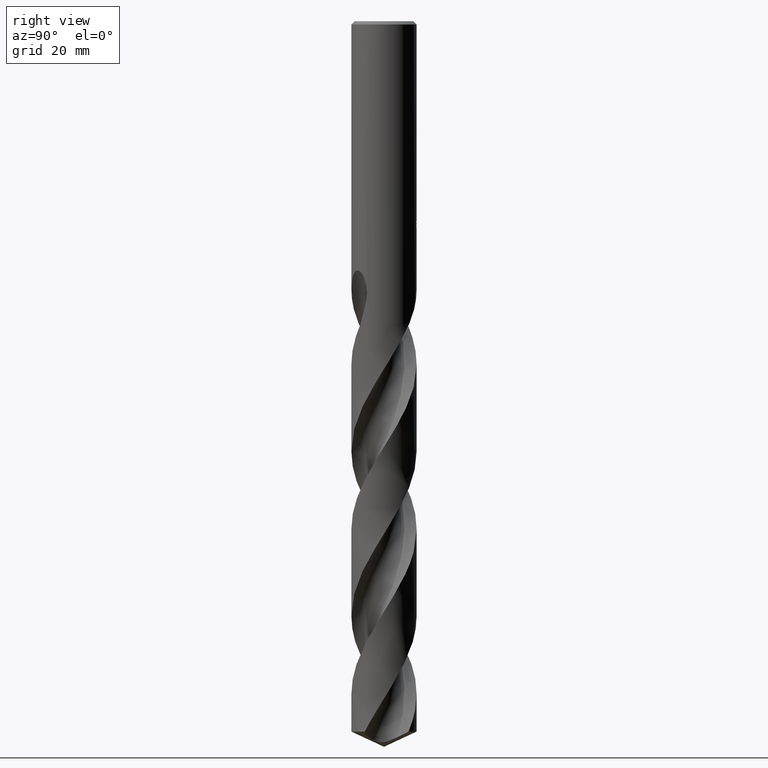
[diagram: clean part render]
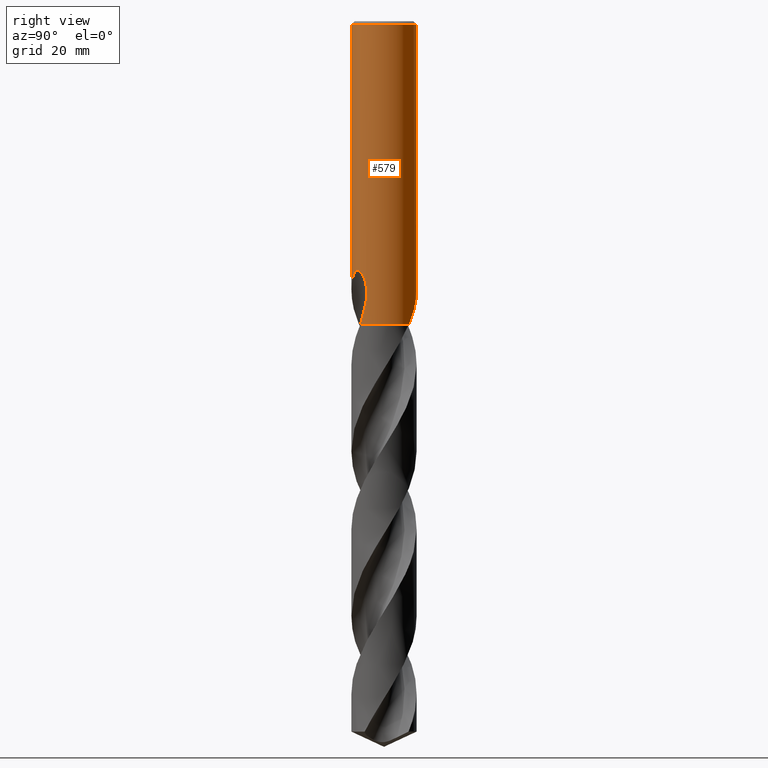
[diagram: same view with one face highlighted and labeled with its STEP entity id]
A machine part, right view. The second image highlights one B-rep face of the part: STEP entity #579.
In plain terms, the highlighted cylindrical surface (edge-blend (fillet) strip) has radius 8 mm, axis along (-0, -0, 1).
Its self-contained STEP definition (entity closure, byte-faithful):
#291=EDGE_CURVE('',#327,#565,#772,.T.);
#297=VERTEX_POINT('',#779);
#313=VERTEX_POINT('',#795);
#315=VERTEX_POINT('',#797);
#327=VERTEX_POINT('',#809);
#363=EDGE_CURVE('',#593,#403,#849,.T.);
#365=EDGE_CURVE('',#583,#565,#851,.T.);
#373=VERTEX_POINT('',#859);
#401=EDGE_CURVE('',#297,#509,#889,.T.);
#403=VERTEX_POINT('',#891);
#427=EDGE_CURVE('',#497,#315,#918,.T.);
#435=EDGE_CURVE('',#479,#705,#927,.T.);
#479=VERTEX_POINT('',#976);
#497=VERTEX_POINT('',#999);
#503=EDGE_CURVE('',#539,#373,#1005,.T.);
#505=EDGE_CURVE('',#373,#701,#1007,.T.);
#509=VERTEX_POINT('',#1011);
#511=EDGE_CURVE('',#593,#327,#1013,.T.);
#539=VERTEX_POINT('',#1043);
#565=VERTEX_POINT('',#1071);
#569=EDGE_CURVE('',#297,#403,#1075,.T.);
#577=EDGE_CURVE('',#705,#313,#1083,.T.);
#579=ADVANCED_FACE('',(#1085),#1086,.T.);
#581=EDGE_CURVE('',#701,#509,#1088,.T.);
#583=VERTEX_POINT('',#1090);
#593=VERTEX_POINT('',#1102);
#597=EDGE_CURVE('',#313,#539,#1106,.T.);
#691=EDGE_CURVE('',#497,#479,#1205,.T.);
#695=EDGE_CURVE('',#583,#315,#1209,.T.);
#701=VERTEX_POINT('',#1215);
#705=VERTEX_POINT('',#1219);
#772=B_SPLINE_CURVE_WITH_KNOTS('',3,(#2755,#2756,#2757,#2758),.UNSPECIFIED.,.F.,.F.,(4,4),(0.0,4.59249789605055),.UNSPECIFIED.);
#779=CARTESIAN_POINT('',(0.0,8.0,-0.799999999999997));
#795=CARTESIAN_POINT('',(0.873560781758956,7.95216269706378,-50.7587351791531));
#797=CARTESIAN_POINT('',(-2.43676324777897E-012,8.0,-65.8011934870331));
#809=CARTESIAN_POINT('',(6.50913730642338,-4.65092802848285,-69.9243581719634));
#849=LINE('',#3167,#3168);
#851=CIRCLE('',#3171,8.0);
#859=CARTESIAN_POINT('',(1.33721006514658,7.88745011024924,-48.5150484364821));
#889=LINE('',#3446,#3447);
#891=CARTESIAN_POINT('',(9.79685083057902E-016,-8.0,-0.799999999999997));
#918=LINE('',#3630,#3631);
#927=ELLIPSE('',#3643,24.3839565869582,8.0);
#976=CARTESIAN_POINT('',(0.29010312703583,7.99473828062458,-50.9998328990228));
#999=CARTESIAN_POINT('',(-7.24729156774638E-017,8.0,-51.0310253601033));
#1005=LINE('',#5359,#5360);
#1007=B_SPLINE_CURVE_WITH_KNOTS('',3,(#5363,#5364,#5365,#5366,#5367,#5368,#5369,#5370,#5371,#5372),.UNSPECIFIED.,.F.,.F.,(4,2,2,2,4),(0.615348112106937,0.923022168160405,1.23069622421387,1.53827686765788,1.84585751110189),.UNSPECIFIED.);
#1011=CARTESIAN_POINT('',(-9.11185746623598E-016,8.0,-49.0232688117743));
#1013=B_SPLINE_CURVE_WITH_KNOTS('',3,(#5379,#5380,#5381,#5382,#5383,#5384,#5385,#5386,#5387,#5388,#5389,#5390,#5391,#5392,#5393,#5394,#5395,#5396,#5397,#5398,#5399,#5400,#5401,#5402,#5403,#5404,#5405,#5406,#5407,#5408),.UNSPECIFIED.,.F.,.F.,(4,2,2,2,2,2,2,2,2,2,2,2,2,2,4),(0.0,3.91590281283359,6.05573409657608,7.99442629748274,10.2470388063598,12.9526719938617,15.2954417411845,16.357947869906,17.1345550297631,17.8694819377975,18.8018247316855,20.1659176186951,22.1051095659883,23.3737877571312,24.7070714168488),.UNSPECIFIED.);
#1043=CARTESIAN_POINT('',(1.33721006514658,7.88745011024924,-50.2901657003257));
#1071=CARTESIAN_POINT('',(5.56193886631163,-5.75020313096956,-74.3));
#1075=CIRCLE('',#5884,8.0);
#1083=LINE('',#5905,#5906);
#1085=FACE_OUTER_BOUND('',#5908,.T.);
#1086=CYLINDRICAL_SURFACE('',#5909,8.0);
#1088=B_SPLINE_CURVE_WITH_KNOTS('',3,(#5912,#5913,#5914,#5915,#5916,#5917,#5918,#5919,#5920,#5921,#5922,#5923,#5924,#5925,#5926,#5927,#5928,#5929,#5930,#5931,#5932,#5933,#5934,#5935,#5936,#5937,#5938),.UNSPECIFIED.,.F.,.F.,(4,2,3,2,2,2,2,2,2,2,2,2,4),(-0.5419285326464,-0.2709642663232,0.0,0.2709642663232,0.5419285326464,0.813116082096196,1.08430363154599,1.35512009221967,1.62593655289334,1.89686258809883,2.16778862330431,2.43871465850979,2.70964069371527),.UNSPECIFIED.);
#1090=CARTESIAN_POINT('',(5.09533746900463,6.1674578293619,-74.3));
#1102=CARTESIAN_POINT('',(2.43587506935927E-012,-7.99999999999999,-65.8011934870331));
#1106=B_SPLINE_CURVE_WITH_KNOTS('',3,(#5958,#5959,#5960,#5961,#5962,#5963,#5964,#5965,#5966,#5967),.UNSPECIFIED.,.F.,.F.,(4,2,2,2,4),(7.9997820093283,8.30736264228193,8.61494327523556,8.92261732067862,9.23029136612168),.UNSPECIFIED.);
#1205=B_SPLINE_CURVE_WITH_KNOTS('',3,(#7201,#7202,#7203,#7204,#7205,#7206,#7207,#7208,#7209,#7210,#7211,#7212,#7213,#7214,#7215,#7216),.UNSPECIFIED.,.F.,.F.,(4,2,2,2,2,2,2,4),(5.84590460773513,6.15359942935952,6.46135491269572,6.76911039603191,7.0768658793681,7.3846213627043,7.69220202210762,7.99978268151095),.UNSPECIFIED.);
#1209=B_SPLINE_CURVE_WITH_KNOTS('',3,(#7222,#7223,#7224,#7225,#7226,#7227,#7228,#7229,#7230,#7231,#7232,#7233,#7234,#7235,#7236,#7237,#7238,#7239,#7240,#7241,#7242,#7243,#7244,#7245,#7246,#7247,#7248,#7249,#7250,#7251),.UNSPECIFIED.,.F.,.F.,(4,2,2,2,2,2,2,2,2,2,2,2,2,2,4),(0.0,3.91590281283365,6.05573409657614,7.99442629748213,10.2470388063583,12.9526719938593,15.2954417411815,16.3579478699027,17.1345550297596,17.8694819377937,18.8018247316814,20.1659176186891,22.1051095659781,23.373787757119,24.7070714168344),.UNSPECIFIED.);
#1215=CARTESIAN_POINT('',(0.799431726384364,7.95995659001041,-48.000000276873));
#1219=CARTESIAN_POINT('',(0.873560781758957,7.95216269706378,-49.3198931596091));
#2755=CARTESIAN_POINT('',(6.509137306476,-4.65092802840921,-69.9243581719924));
#2756=CARTESIAN_POINT('',(6.25151903594061,-5.01147385610831,-71.3896527089585));
#2757=CARTESIAN_POINT('',(5.94108467890927,-5.38347072464315,-72.8636329897032));
#2758=CARTESIAN_POINT('',(5.56193886631163,-5.75020313096956,-74.3));
#3167=CARTESIAN_POINT('',(9.79685083057902E-016,-8.0,-63.65));
#3168=VECTOR('',#7431,1.0);
#3171=AXIS2_PLACEMENT_3D('',#7432,#7433,#7434);
#3446=CARTESIAN_POINT('',(-9.79685083057902E-016,8.0,-63.65));
#3447=VECTOR('',#7484,1.0);
#3630=CARTESIAN_POINT('',(-9.79685083057902E-016,8.0,-63.65));
#3631=VECTOR('',#7531,1.0);
#3643=AXIS2_PLACEMENT_3D('',#7543,#7544,#7545);
#5359=CARTESIAN_POINT('',(1.33721006514658,7.88745011024924,-49.4026070684039));
#5360=VECTOR('',#7647,1.0);
#5363=CARTESIAN_POINT('',(1.47599103529286,7.86266179253153,-48.7785325491198));
#5364=CARTESIAN_POINT('',(1.43438985944284,7.87047122759364,-48.6782513647829));
#5365=CARTESIAN_POINT('',(1.38262799115151,7.87984840929324,-48.5821733907361));
#5366=CARTESIAN_POINT('',(1.26311675841946,7.89988652891524,-48.4045654679751));
#5367=CARTESIAN_POINT('',(1.19535909291818,7.9105264552896,-48.323038735155));
#5368=CARTESIAN_POINT('',(1.05105571182799,7.93098927160683,-48.1787555986019));
#5369=CARTESIAN_POINT('',(0.96953892166584,7.94153484648562,-48.1110208119877));
#5370=CARTESIAN_POINT('',(0.791947255495983,7.96120600054034,-47.9915456660162));
#5371=CARTESIAN_POINT('',(0.695875588998913,7.97031164946692,-47.9397972554843));
#5372=CARTESIAN_POINT('',(0.595603047157034,7.97779775440674,-47.8982081378705));
#5379=CARTESIAN_POINT('',(-5.09533746900463,-6.1674578293619,-74.3));
#5380=CARTESIAN_POINT('',(-4.56781300680808,-6.60328004856703,-73.1884301763902));
#5381=CARTESIAN_POINT('',(-3.96147717069402,-6.99059414093797,-72.1519049479666));
#5382=CARTESIAN_POINT('',(-2.90421070218767,-7.46547307658953,-70.4201014509066));
#5383=CARTESIAN_POINT('',(-2.52357567905521,-7.60214076383474,-69.8104798396806));
#5384=CARTESIAN_POINT('',(-1.78663426127276,-7.80641246493782,-68.6302760887285));
#5385=CARTESIAN_POINT('',(-1.43360700960122,-7.8785812952792,-68.0651771779032));
#5386=CARTESIAN_POINT('',(-0.66939761638888,-7.98271463327913,-66.8471682891758));
#5387=CARTESIAN_POINT('',(-0.251818952600852,-8.0071311229172,-66.1847063849591));
#5388=CARTESIAN_POINT('',(0.675477540706896,-7.98748343496672,-64.767614962988));
#5389=CARTESIAN_POINT('',(1.22529818168479,-7.92706306859737,-63.9612757067075));
#5390=CARTESIAN_POINT('',(2.28510817287336,-7.68329109102345,-62.6324744414043));
#5391=CARTESIAN_POINT('',(2.87106821308121,-7.49776193190795,-61.9845420802108));
#5392=CARTESIAN_POINT('',(3.75814303339007,-7.06900746724023,-61.377511312445));
#5393=CARTESIAN_POINT('',(4.0519265721904,-6.90705827610741,-61.2274173351229));
#5394=CARTESIAN_POINT('',(4.56671142469977,-6.57360084481971,-61.112136804995));
#5395=CARTESIAN_POINT('',(4.77785754992476,-6.42173920744754,-61.1100020707401));
#5396=CARTESIAN_POINT('',(5.17113183649068,-6.1089352431671,-61.2109696484492));
#5397=CARTESIAN_POINT('',(5.34313168535859,-5.95785593701404,-61.3056222911061));
#5398=CARTESIAN_POINT('',(5.69315463373453,-5.62677348313845,-61.601767405673));
#5399=CARTESIAN_POINT('',(5.85509159657868,-5.45519699647588,-61.8204157500394));
#5400=CARTESIAN_POINT('',(6.18679112368952,-5.08054745049944,-62.4191394066163));
#5401=CARTESIAN_POINT('',(6.34533440279514,-4.87652583157165,-62.8632166951698));
#5402=CARTESIAN_POINT('',(6.64345502896667,-4.46687448665409,-64.1056738234784));
#5403=CARTESIAN_POINT('',(6.75122285237993,-4.29239836170946,-64.990528653663));
#5404=CARTESIAN_POINT('',(6.80451842235327,-4.20714986738576,-66.6280143733146));
#5405=CARTESIAN_POINT('',(6.79196220113431,-4.22796907317364,-67.2800385825896));
#5406=CARTESIAN_POINT('',(6.70335655751583,-4.36716841121042,-68.6033173532593));
#5407=CARTESIAN_POINT('',(6.62425545031343,-4.48981613845744,-69.2695915934735));
#5408=CARTESIAN_POINT('',(6.50913730642338,-4.65092802848284,-69.9243581719634));
#5884=AXIS2_PLACEMENT_3D('',#7703,#7704,#7705);
#5905=CARTESIAN_POINT('',(0.873560781758957,7.95216269706378,-50.0393141693811));
#5906=VECTOR('',#7707,1.0);
#5908=EDGE_LOOP('',(#7709,#7710,#7711,#7712,#7713,#7714,#7715,#7716,#7717,#7718,#7719,#7720,#7721,#7722,#7723));
#5909=AXIS2_PLACEMENT_3D('',#7724,#7725,#7726);
#5912=CARTESIAN_POINT('',(0.664954599443547,7.97231681386778,-47.8134280485152));
#5913=CARTESIAN_POINT('',(0.728697309144575,7.96700016514617,-47.8771976298052));
#5914=CARTESIAN_POINT('',(0.783984970005959,7.96157817669746,-47.9579676288293));
#5915=CARTESIAN_POINT('',(0.857338729083105,7.95401344016708,-48.1350264032587));
#5916=CARTESIAN_POINT('',(0.875400981188567,7.9519603320272,-48.2313205904791));
#5917=CARTESIAN_POINT('',(0.875400981188567,7.9519603320272,-48.3216420125868));
#5918=CARTESIAN_POINT('',(0.875400981188567,7.9519603320272,-48.4119634346945));
#5919=CARTESIAN_POINT('',(0.857338729083105,7.95401344016708,-48.5082576219149));
#5920=CARTESIAN_POINT('',(0.783984970005959,7.96157817669746,-48.6853163963443));
#5921=CARTESIAN_POINT('',(0.728697309144575,7.96700016514617,-48.7660863953684));
#5922=CARTESIAN_POINT('',(0.601159363733413,7.97763784367611,-48.8936781061006));
#5923=CARTESIAN_POINT('',(0.520362377010846,7.9835511616299,-48.9490134763627));
#5924=CARTESIAN_POINT('',(0.343238271730281,7.99312539889087,-49.0224346019683));
#5925=CARTESIAN_POINT('',(0.246904936469423,7.99669990446128,-49.0405166027747));
#5926=CARTESIAN_POINT('',(0.0662715181116066,8.00023481827847,-49.0405166027747));
#5927=CARTESIAN_POINT('',(-0.0300046983202698,8.00043385807034,-49.0224788314126));
#5928=CARTESIAN_POINT('',(-0.207097636225057,7.99780924806332,-48.9491319808916));
#5929=CARTESIAN_POINT('',(-0.287916228308942,7.99507247117758,-48.8938243353674));
#5930=CARTESIAN_POINT('',(-0.415561608099308,7.98945501431132,-48.7662134499861));
#5931=CARTESIAN_POINT('',(-0.47089751346449,7.98621359896913,-48.6853869033816));
#5932=CARTESIAN_POINT('',(-0.544291654106699,7.9815473885346,-48.5082570304582));
#5933=CARTESIAN_POINT('',(-0.562348199187247,7.98021080566615,-48.4119506909886));
#5934=CARTESIAN_POINT('',(-0.562348199187247,7.98021080566615,-48.231333334185));
#5935=CARTESIAN_POINT('',(-0.544291654106699,7.9815473885346,-48.1350269947154));
#5936=CARTESIAN_POINT('',(-0.47089751346449,7.98621359896913,-47.9578971217919));
#5937=CARTESIAN_POINT('',(-0.415561608099308,7.98945501431132,-47.8770705751875));
#5938=CARTESIAN_POINT('',(-0.351726009227227,7.99226431084665,-47.8132522270084));
#5958=CARTESIAN_POINT('',(0.595603069362038,7.97779775274897,-50.9070059828647));
#5959=CARTESIAN_POINT('',(0.695875607770284,7.97031164778485,-50.8654168666682));
#5960=CARTESIAN_POINT('',(0.791947270975792,7.9612059989663,-50.8136684579007));
#5961=CARTESIAN_POINT('',(0.969538931061313,7.94153484530432,-50.6941933160018));
#5962=CARTESIAN_POINT('',(1.05105571843074,7.93098927070892,-50.626458531696));
#5963=CARTESIAN_POINT('',(1.19535909455105,7.91052645501965,-50.4821754000808));
#5964=CARTESIAN_POINT('',(1.26311675770878,7.89988652901278,-50.400648670066));
#5965=CARTESIAN_POINT('',(1.38262798630879,7.87984841012683,-50.2230407534163));
#5966=CARTESIAN_POINT('',(1.43438985281126,7.87047122879432,-50.1269627826753));
#5967=CARTESIAN_POINT('',(1.47599102722323,7.86266179404637,-50.0266816017901));
#7201=CARTESIAN_POINT('',(-1.37965989409101,7.88013569531876,-50.3117516854175));
#7202=CARTESIAN_POINT('',(-1.3199289256702,7.89059343674534,-50.4005322669916));
#7203=CARTESIAN_POINT('',(-1.25220482221876,7.90172765643501,-50.4820341223787));
#7204=CARTESIAN_POINT('',(-1.107952172922,7.92324182089716,-50.6263077447315));
#7205=CARTESIAN_POINT('',(-1.02644372997691,7.93438131532357,-50.694054819207));
#7206=CARTESIAN_POINT('',(-0.848862462231446,7.95533947157086,-50.8135583581366));
#7207=CARTESIAN_POINT('',(-0.752792760365746,7.96513819479128,-50.8653229590247));
#7208=CARTESIAN_POINT('',(-0.552233007873722,7.9815513596031,-50.9485362190328));
#7209=CARTESIAN_POINT('',(-0.447578035759424,7.98816541907638,-50.9800508802037));
#7210=CARTESIAN_POINT('',(-0.236935963609582,7.99718539298489,-51.0214239066938));
#7211=CARTESIAN_POINT('',(-0.130946685762249,7.99958603183741,-51.0312723335086));
#7212=CARTESIAN_POINT('',(0.074164072792245,8.00031320966596,-51.0312723335086));
#7213=CARTESIAN_POINT('',(0.180109755406485,7.99866619075415,-51.0214348948015));
#7214=CARTESIAN_POINT('',(0.390692067401577,7.99114885755329,-50.9800916357112));
#7215=CARTESIAN_POINT('',(0.495330794510019,7.98528384147368,-50.9485955375336));
#7216=CARTESIAN_POINT('',(0.595603341302621,7.97779773244654,-50.9070064177945));
#7222=CARTESIAN_POINT('',(5.09533746900464,6.1674578293619,-74.3));
#7223=CARTESIAN_POINT('',(4.56781300680808,6.60328004856705,-73.1884301763901));
#7224=CARTESIAN_POINT('',(3.96147717069399,6.99059414093799,-72.1519049479666));
#7225=CARTESIAN_POINT('',(2.90421070218769,7.46547307658951,-70.4201014509066));
#7226=CARTESIAN_POINT('',(2.52357567905526,7.60214076383473,-69.8104798396807));
#7227=CARTESIAN_POINT('',(1.78663426127284,7.8064124649378,-68.6302760887287));
#7228=CARTESIAN_POINT('',(1.43360700960138,7.8785812952792,-68.0651771779035));
#7229=CARTESIAN_POINT('',(0.669397616388719,7.98271463327917,-66.8471682891755));
#7230=CARTESIAN_POINT('',(0.251818952600778,8.00713112291719,-66.184706384959));
#7231=CARTESIAN_POINT('',(-0.675477540706848,7.98748343496672,-64.7676149629881));
#7232=CARTESIAN_POINT('',(-1.22529818168477,7.92706306859738,-63.9612757067075));
#7233=CARTESIAN_POINT('',(-2.28510817287339,7.68329109102345,-62.6324744414042));
#7234=CARTESIAN_POINT('',(-2.87106821308122,7.49776193190795,-61.9845420802107));
#7235=CARTESIAN_POINT('',(-3.75814303339007,7.06900746724023,-61.377511312445));
#7236=CARTESIAN_POINT('',(-4.0519265721904,6.90705827610741,-61.2274173351229));
#7237=CARTESIAN_POINT('',(-4.56671142469977,6.57360084481971,-61.112136804995));
#7238=CARTESIAN_POINT('',(-4.77785754992476,6.42173920744754,-61.1100020707401));
#7239=CARTESIAN_POINT('',(-5.17113183649067,6.10893524316712,-61.2109696484492));
#7240=CARTESIAN_POINT('',(-5.34313168535857,5.95785593701407,-61.3056222911061));
#7241=CARTESIAN_POINT('',(-5.69315463373455,5.62677348313844,-61.601767405673));
#7242=CARTESIAN_POINT('',(-5.8550915965787,5.45519699647586,-61.8204157500394));
#7243=CARTESIAN_POINT('',(-6.18679112368928,5.08054745049969,-62.4191394066159));
#7244=CARTESIAN_POINT('',(-6.34533440279499,4.87652583157186,-62.8632166951692));
#7245=CARTESIAN_POINT('',(-6.64345502896676,4.46687448665397,-64.1056738234787));
#7246=CARTESIAN_POINT('',(-6.75122285237994,4.29239836170944,-64.9905286536634));
#7247=CARTESIAN_POINT('',(-6.80451842235327,4.20714986738576,-66.6280143733146));
#7248=CARTESIAN_POINT('',(-6.79196220113431,4.22796907317365,-67.2800385825896));
#7249=CARTESIAN_POINT('',(-6.70335655751584,4.36716841121043,-68.6033173532593));
#7250=CARTESIAN_POINT('',(-6.62425545031344,4.48981613845744,-69.2695915934735));
#7251=CARTESIAN_POINT('',(-6.50913730642338,4.65092802848284,-69.9243581719634));
#7431=DIRECTION('',(-0.0,-0.0,1.0));
#7432=CARTESIAN_POINT('',(0.0,0.0,-74.3));
#7433=DIRECTION('',(0.0,0.0,-1.0));
#7434=DIRECTION('',(0.0,1.0,0.0));
#7484=DIRECTION('',(0.0,0.0,-1.0));
#7531=DIRECTION('',(0.0,0.0,-1.0));
#7543=CARTESIAN_POINT('',(0.0,0.0,-51.8351219173269));
#7544=DIRECTION('',(0.944648353914092,0.0,-0.328084573619969));
#7545=DIRECTION('',(0.328084573619968,-0.0,0.944648353914092));
#7647=DIRECTION('',(-0.0,-0.0,1.0));
#7703=CARTESIAN_POINT('',(0.0,0.0,-0.799999999999997));
#7704=DIRECTION('',(0.0,0.0,-1.0));
#7705=DIRECTION('',(0.0,1.0,0.0));
#7707=DIRECTION('',(0.0,0.0,-1.0));
#7709=ORIENTED_EDGE('',*,*,#401,.F.);
#7710=ORIENTED_EDGE('',*,*,#569,.T.);
#7711=ORIENTED_EDGE('',*,*,#363,.F.);
#7712=ORIENTED_EDGE('',*,*,#511,.T.);
#7713=ORIENTED_EDGE('',*,*,#291,.T.);
#7714=ORIENTED_EDGE('',*,*,#365,.F.);
#7715=ORIENTED_EDGE('',*,*,#695,.T.);
#7716=ORIENTED_EDGE('',*,*,#427,.F.);
#7717=ORIENTED_EDGE('',*,*,#691,.T.);
#7718=ORIENTED_EDGE('',*,*,#435,.T.);
#7719=ORIENTED_EDGE('',*,*,#577,.T.);
#7720=ORIENTED_EDGE('',*,*,#597,.T.);
#7721=ORIENTED_EDGE('',*,*,#503,.T.);
#7722=ORIENTED_EDGE('',*,*,#505,.T.);
#7723=ORIENTED_EDGE('',*,*,#581,.T.);
#7724=CARTESIAN_POINT('',(0.0,0.0,-63.65));
#7725=DIRECTION('',(-0.0,-0.0,1.0));
#7726=DIRECTION('',(0.0,1.0,0.0));